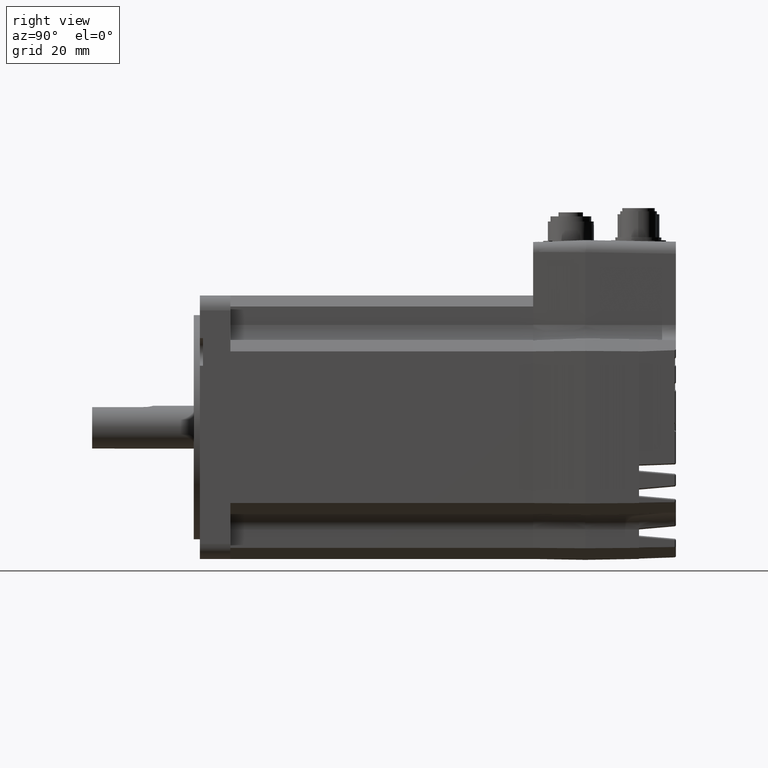
[diagram: clean part render]
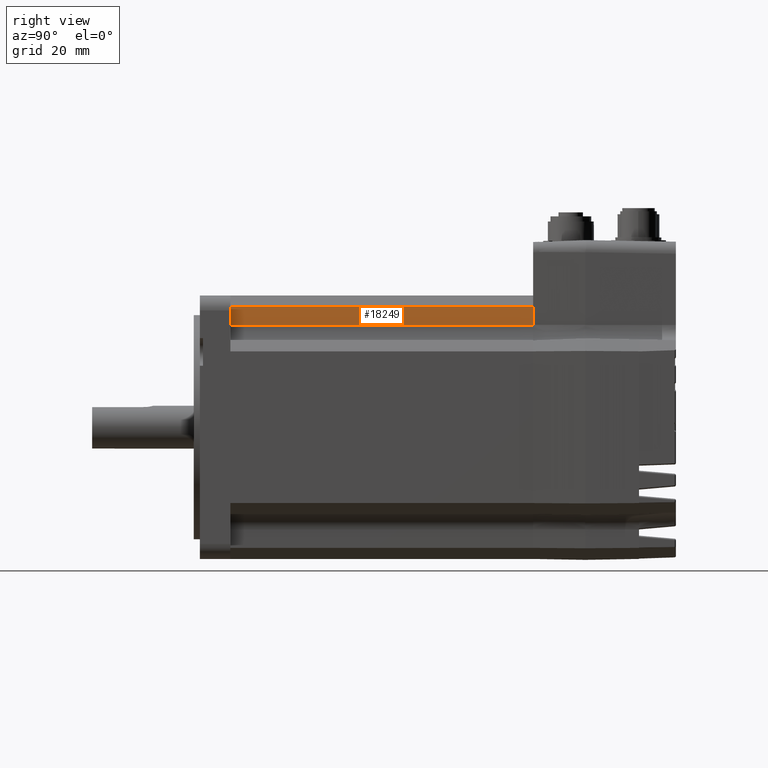
[diagram: same view with one face highlighted and labeled with its STEP entity id]
A machine part, right view. The second image highlights one B-rep face of the part: STEP entity #18249.
In plain terms, the highlighted planar face has unit normal (1, 0, -0).
Its self-contained STEP definition (entity closure, byte-faithful):
#1682=ORIENTED_EDGE('',*,*,#6406,.T.);
#1683=ORIENTED_EDGE('',*,*,#6407,.T.);
#1684=ORIENTED_EDGE('',*,*,#6408,.F.);
#1685=ORIENTED_EDGE('',*,*,#6409,.F.);
#6406=EDGE_CURVE('',#8768,#8769,#10250,.T.);
#6407=EDGE_CURVE('',#8769,#8770,#10251,.T.);
#6408=EDGE_CURVE('',#8771,#8770,#10252,.T.);
#6409=EDGE_CURVE('',#8768,#8771,#10253,.T.);
#8768=VERTEX_POINT('',#26648);
#8769=VERTEX_POINT('',#26649);
#8770=VERTEX_POINT('',#26651);
#8771=VERTEX_POINT('',#26653);
#10250=LINE('',#26647,#11640);
#10251=LINE('',#26650,#11641);
#10252=LINE('',#26652,#11642);
#10253=LINE('',#26654,#11643);
#11640=VECTOR('',#21339,1000.);
#11641=VECTOR('',#21340,1000.);
#11642=VECTOR('',#21341,1000.);
#11643=VECTOR('',#21342,1000.);
#12976=EDGE_LOOP('',(#1682,#1683,#1684,#1685));
#14185=FACE_BOUND('',#12976,.T.);
#15387=PLANE('',#19311);
#18249=ADVANCED_FACE('',(#14185),#15387,.T.);
#19311=AXIS2_PLACEMENT_3D('',#26646,#21337,#21338);
#21337=DIRECTION('',(1.,0.,-5.88041856263325E-17));
#21338=DIRECTION('',(-5.88041856263325E-17,0.,-1.));
#21339=DIRECTION('',(0.,1.,0.));
#21340=DIRECTION('',(0.,0.,1.));
#21341=DIRECTION('',(0.,1.,0.));
#21342=DIRECTION('',(5.88041856263325E-17,0.,1.));
#26646=CARTESIAN_POINT('',(75.265625,-132.32266668009,92.36375));
#26647=CARTESIAN_POINT('',(75.265625,48.,97.36375));
#26648=CARTESIAN_POINT('',(75.265625,9.91,97.36375));
#26649=CARTESIAN_POINT('',(75.265625,108.5,97.36375));
#26650=CARTESIAN_POINT('',(75.265625,108.5,97.36375));
#26651=CARTESIAN_POINT('',(75.265625,108.5,103.36375));
#26652=CARTESIAN_POINT('',(75.265625,-127.060361018707,103.36375));
#26653=CARTESIAN_POINT('',(75.265625,9.91,103.36375));
#26654=CARTESIAN_POINT('',(75.265625,9.91,92.36375));